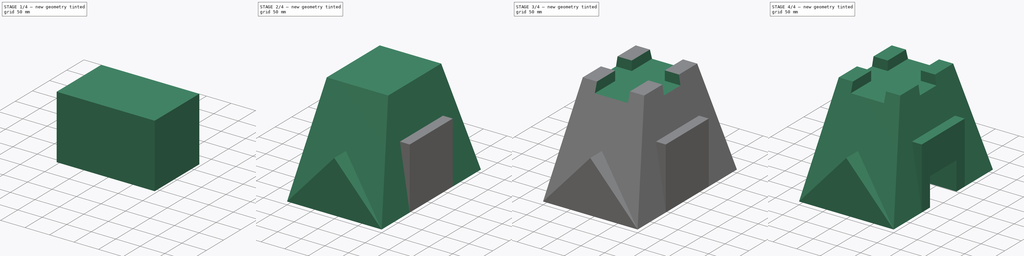
[diagram: build sequence overview — one tinted view per stage of 4, left to right]
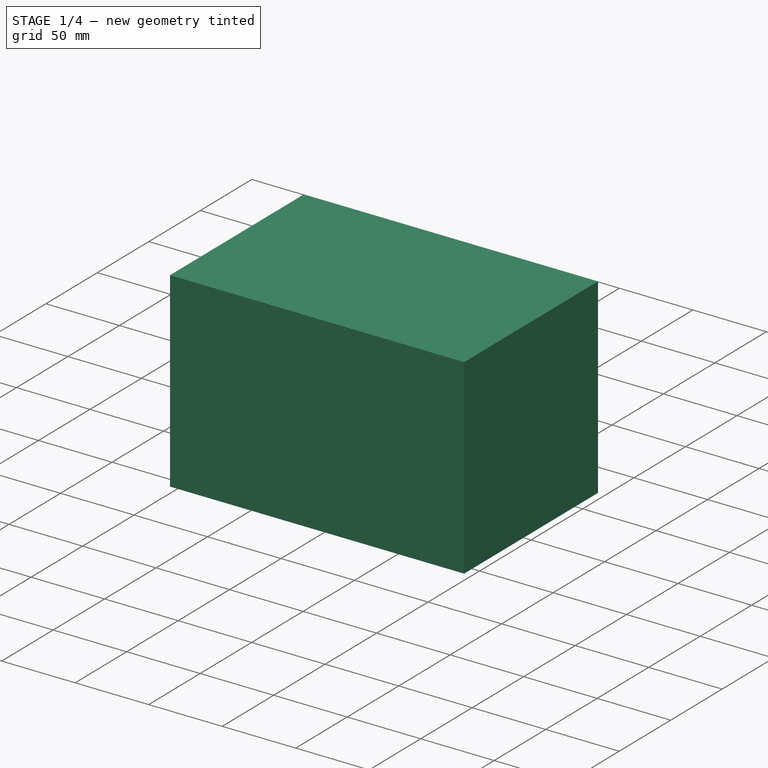
[diagram: stage 1 of 4 — iso view after this stage's code; geometry added in this stage tinted green]
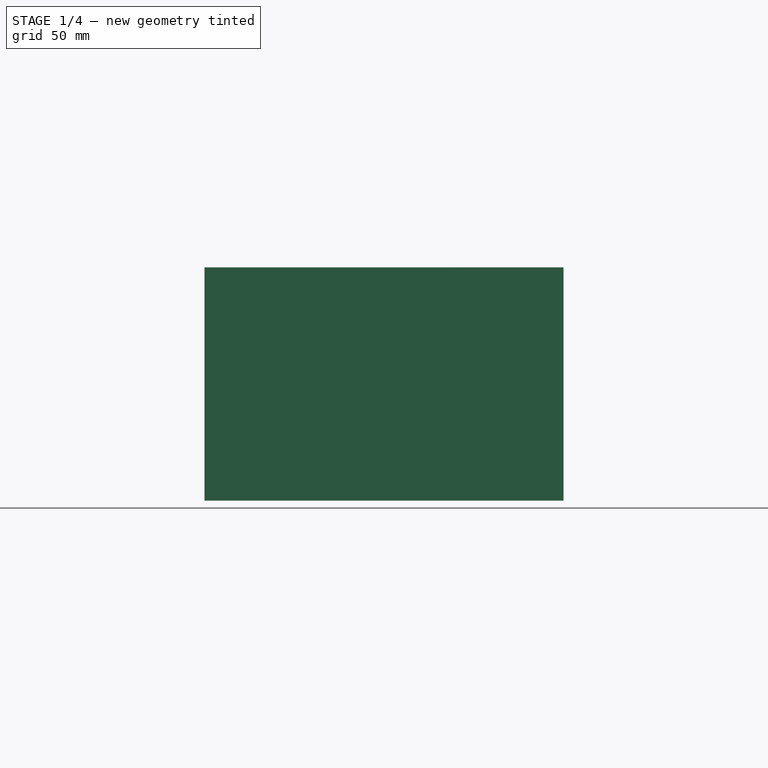
[diagram: stage 1 of 4 — front view after this stage's code; geometry added in this stage tinted green]
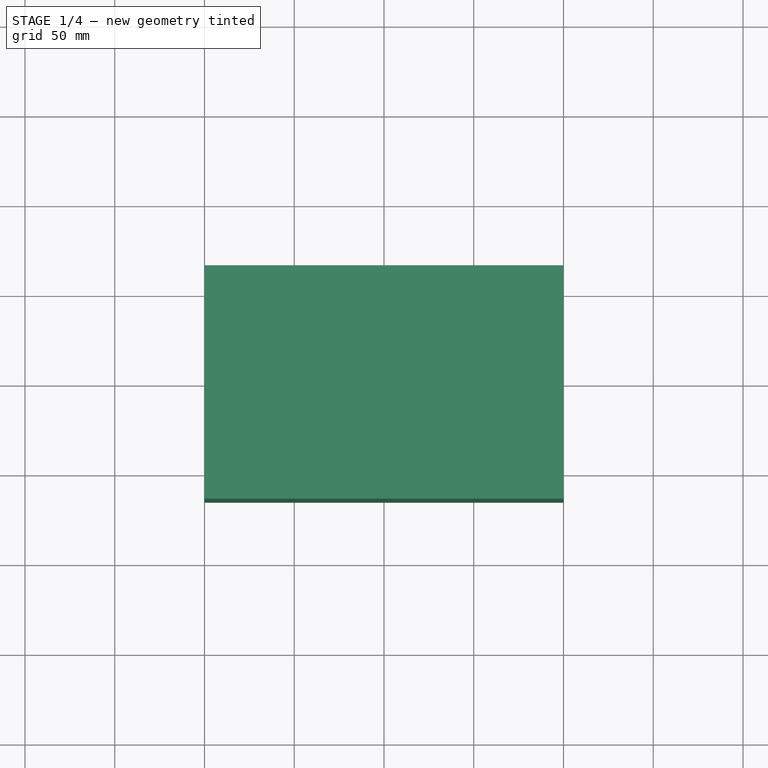
[diagram: stage 1 of 4 — top view after this stage's code; geometry added in this stage tinted green]
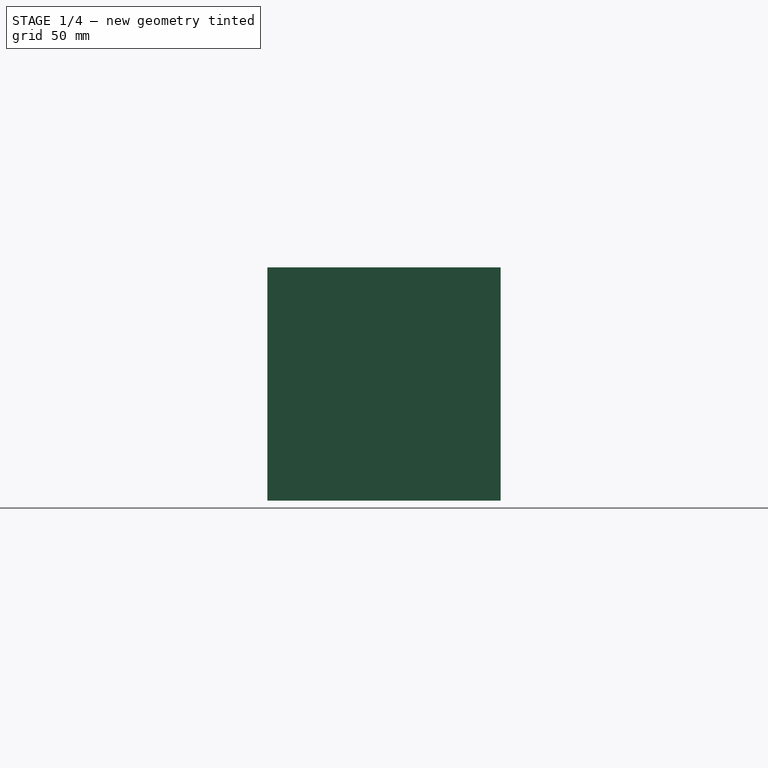
[diagram: stage 1 of 4 — right view after this stage's code; geometry added in this stage tinted green]
FCSTD DOCUMENT  (FreeCAD 0.16R)
Label: Ejer Final 22
License: All rights reserved
LicenseURL: http://en.wikipedia.org/wiki/All_rights_reserved
objects: Sketcher::SketchObject×9, PartDesign::Pad×4, PartDesign::Pocket×3, Part::MultiFuse×2, Part::Loft×1, Part::Cut×1
note: 27 computed .brp shape members not serialized (recipe doc carries the construction recipe); baked Part::Feature solids carry a one-line shape summary decoded from their .brp

FEATURE [PartDesign::Pad] Pad002
  Length = 200
  Length2 = 100
  Midplane = true
  Placement = pos=(0,0,0) rot=(0.57735,0.57735,0.57735;2.0944rad)
  Sketch = -> Sketch006
  Type = 0
FEATURE [Sketcher::SketchObject] Sketch007
  Placement = pos=(0,0,0) rot=(0.57735,0.57735,0.57735;2.0944rad)
  sketch-geometry (4):
    g0: LineSegment StartX=65 StartY=0 StartZ=0 EndX=65 EndY=130 EndZ=0
    g1: LineSegment StartX=65 StartY=130 StartZ=0 EndX=-65 EndY=130 EndZ=0
    g2: LineSegment StartX=-65 StartY=130 StartZ=0 EndX=-65 EndY=0 EndZ=0
    g3: LineSegment StartX=-65 StartY=0 StartZ=0 EndX=65 EndY=0 EndZ=0
  constraints (12):
    c: Coincident(g0,g1)
    c: Coincident(g1,g2)
    c: Horizontal(g1)
    c: Vertical(g0)
    c: Vertical(g2)
    c: DistanceX(g2,g0) = 130
    c: DistanceY(g2,g1) = 130
    c: Symmetric(g0,g1,g-2)
    c: Coincident(g3,g2)
    c: Coincident(g3,g0)
    c: Horizontal(g3)
    c: Symmetric(g3,g3,g-1)
FEATURE [PartDesign::Pad] Pad003
  Length = 200
  Length2 = 100
  Midplane = true
  Placement = pos=(0,0,0) rot=(0.57735,0.57735,0.57735;2.0944rad)
  Sketch = -> Sketch007
  Type = 0
FEATURE [Sketcher::SketchObject] Sketch008
  Placement = pos=(100,0,0) rot=(0.57735,0.57735,0.57735;2.0944rad)
  Support = -> Pad003 [Face6]
  sketch-geometry (4):
    g0: LineSegment StartX=-40 StartY=0 StartZ=0 EndX=40 EndY=0 EndZ=0
    g1: LineSegment StartX=40 StartY=0 StartZ=0 EndX=40 EndY=60 EndZ=0
    g2: LineSegment StartX=40 StartY=60 StartZ=0 EndX=-40 EndY=60 EndZ=0
    g3: LineSegment StartX=-40 StartY=60 StartZ=0 EndX=-40 EndY=0 EndZ=0
  constraints (12):
    c: Coincident(g0,g1)
    c: Coincident(g1,g2)
    c: Coincident(g2,g3)
    c: Coincident(g3,g0)
    c: Horizontal(g0)
    c: Horizontal(g2)
    c: Vertical(g1)
    c: Vertical(g3)
    c: DistanceX(g2,g2) = 80
    c: DistanceY(g3,g3) = 60
    c: Symmetric(g0,g0,g-2)
    c: PointOnObject(g-1,g0)
FEATURE [PartDesign::Pocket] Pocket002
  Length = 5
  Placement = pos=(0,0,0) rot=(0.57735,0.57735,0.57735;2.0944rad)
  Sketch = -> Sketch008
  Type = 1
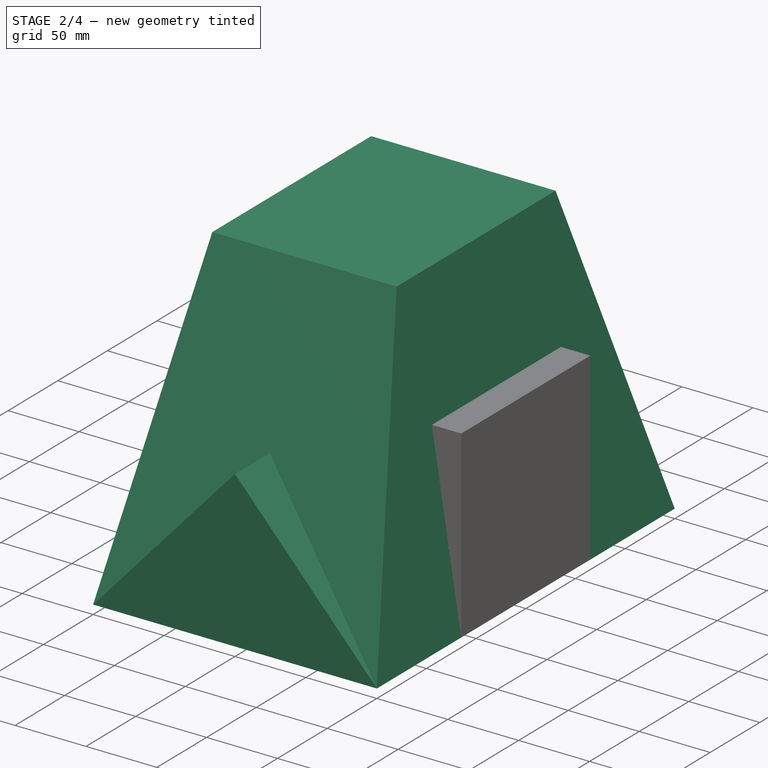
[diagram: stage 2 of 4 — iso view after this stage's code; geometry added in this stage tinted green]
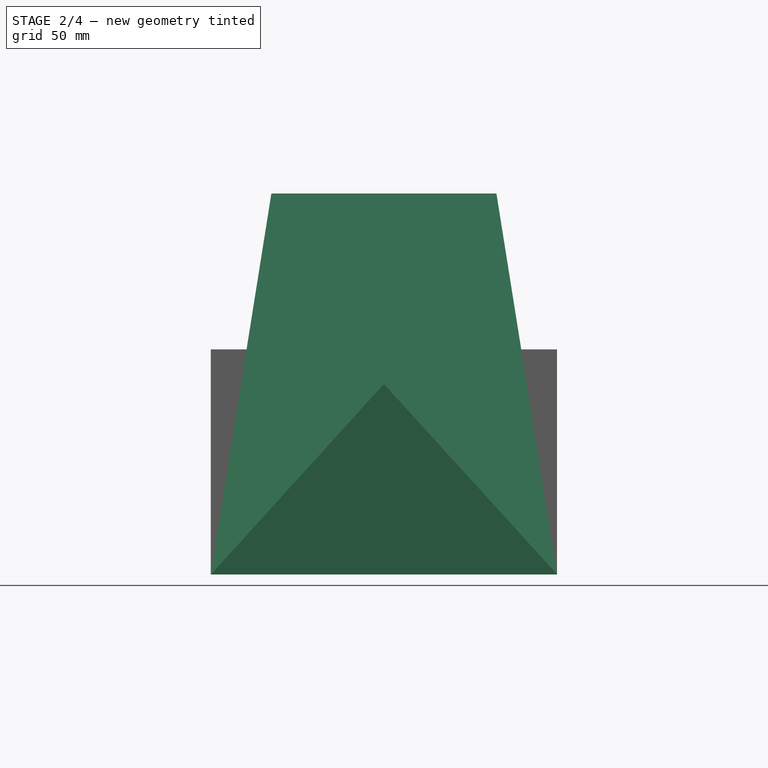
[diagram: stage 2 of 4 — front view after this stage's code; geometry added in this stage tinted green]
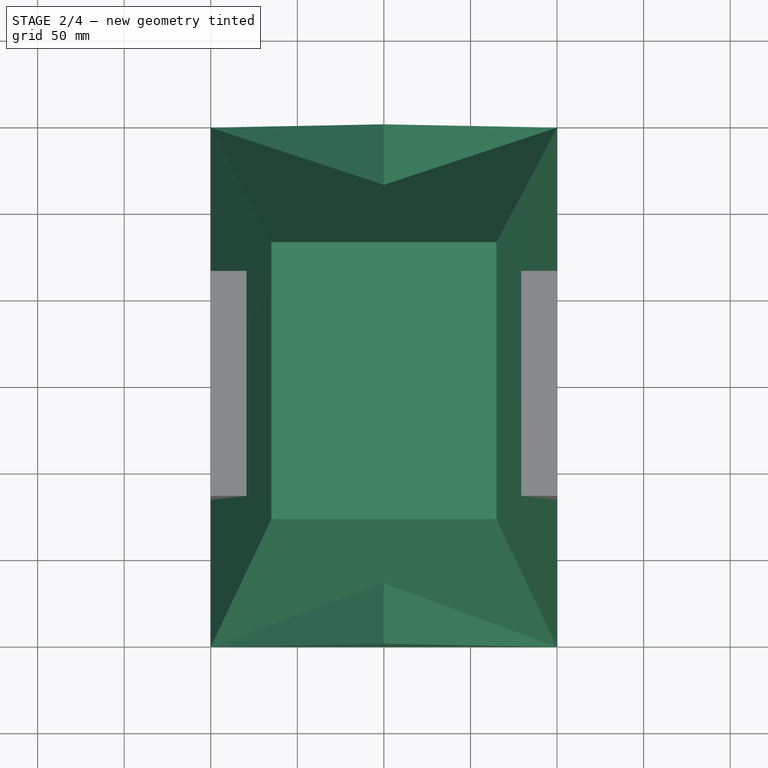
[diagram: stage 2 of 4 — top view after this stage's code; geometry added in this stage tinted green]
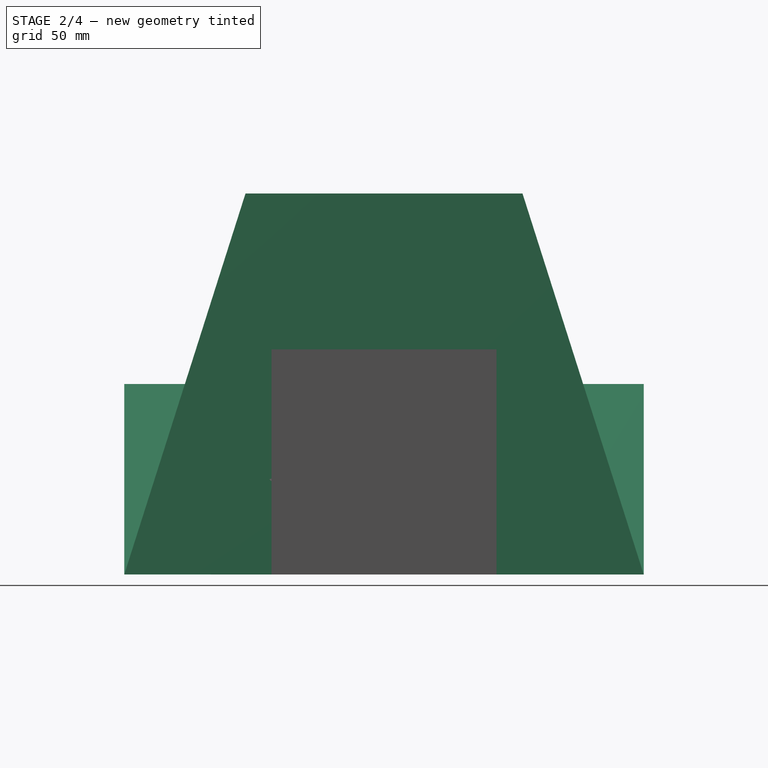
[diagram: stage 2 of 4 — right view after this stage's code; geometry added in this stage tinted green]
FEATURE [Sketcher::SketchObject] Sketch
  sketch-geometry (4):
    g0: LineSegment StartX=-100 StartY=150 StartZ=0 EndX=100 EndY=150 EndZ=0
    g1: LineSegment StartX=100 StartY=150 StartZ=0 EndX=100 EndY=-150 EndZ=0
    g2: LineSegment StartX=100 StartY=-150 StartZ=0 EndX=-100 EndY=-150 EndZ=0
    g3: LineSegment StartX=-100 StartY=-150 StartZ=0 EndX=-100 EndY=150 EndZ=0
  constraints (12):
    c: Coincident(g0,g1)
    c: Coincident(g1,g2)
    c: Coincident(g2,g3)
    c: Coincident(g3,g0)
    c: Horizontal(g0)
    c: Horizontal(g2)
    c: Vertical(g1)
    c: Vertical(g3)
    c: DistanceY(g3,g3) = 300
    c: DistanceX(g0,g0) = 200
    c: Symmetric(g0,g0,g-2)
    c: Symmetric(g2,g0,g-1)
FEATURE [Sketcher::SketchObject] Sketch001
  Placement = pos=(0,0,220) rot=(0,0,1;0rad)
  sketch-geometry (4):
    g0: LineSegment StartX=-65 StartY=80 StartZ=0 EndX=65 EndY=80 EndZ=0
    g1: LineSegment StartX=65 StartY=80 StartZ=0 EndX=65 EndY=-80 EndZ=0
    g2: LineSegment StartX=65 StartY=-80 StartZ=0 EndX=-65 EndY=-80 EndZ=0
    g3: LineSegment StartX=-65 StartY=-80 StartZ=0 EndX=-65 EndY=80 EndZ=0
  constraints (12):
    c: Coincident(g0,g1)
    c: Coincident(g1,g2)
    c: Coincident(g2,g3)
    c: Coincident(g3,g0)
    c: Horizontal(g0)
    c: Horizontal(g2)
    c: Vertical(g1)
    c: Vertical(g3)
    c: DistanceY(g3,g3) = 160
    c: DistanceX(g0,g0) = 130
    c: Symmetric(g0,g1,g-1)
    c: Symmetric(g2,g1,g-2)
FEATURE [Part::Loft] Loft
  Closed = false
  Ruled = false
  Sections = -> [Sketch,Sketch001]
  Solid = true
FEATURE [Sketcher::SketchObject] Sketch004
  Placement = pos=(0,-150,0) rot=(-1,0,0;4.71239rad)
  sketch-geometry (3):
    g0: LineSegment StartX=-99.8851 StartY=0 StartZ=0 EndX=100.115 EndY=0 EndZ=0
    g1: LineSegment StartX=100.115 StartY=0 StartZ=0 EndX=0 EndY=110 EndZ=0
    g2: LineSegment StartX=0 StartY=110 StartZ=0 EndX=-99.8851 EndY=0 EndZ=0
  constraints (8):
    c: Horizontal(g0)
    c: Coincident(g0,g1)
    c: PointOnObject(g1,g-2)
    c: Coincident(g1,g2)
    c: Coincident(g2,g0)
    c: DistanceX(g0,g0) = 200
    c: DistanceY(g-1,g1) = 110
    c: PointOnObject(g-1,g0)
FEATURE [PartDesign::Pad] Pad
  Length = 50
  Length2 = 100
  Placement = pos=(0,-150,0) rot=(-1,0,0;4.71239rad)
  Reversed = true
  Sketch = -> Sketch004
  Type = 0
FEATURE [Sketcher::SketchObject] Sketch005
  Placement = pos=(0,150,0) rot=(-1,0,0;4.71239rad)
  sketch-geometry (3):
    g0: LineSegment StartX=-100 StartY=0 StartZ=0 EndX=100 EndY=0 EndZ=0
    g1: LineSegment StartX=100 StartY=0 StartZ=0 EndX=0 EndY=110 EndZ=0
    g2: LineSegment StartX=0 StartY=110 StartZ=0 EndX=-100 EndY=0 EndZ=0
  constraints (9):
    c: Horizontal(g0)
    c: Coincident(g0,g1)
    c: PointOnObject(g1,g-2)
    c: Coincident(g2,g0)
    c: Coincident(g1,g2)
    c: DistanceX(g0,g0) = 200
    c: Symmetric(g0,g0,g-2)
    c: DistanceY(g-1,g1) = 110
    c: PointOnObject(g-1,g0)
FEATURE [PartDesign::Pad] Pad001
  Length = 50
  Length2 = 100
  Placement = pos=(0,150,0) rot=(-1,0,0;4.71239rad)
  Sketch = -> Sketch005
  Type = 0
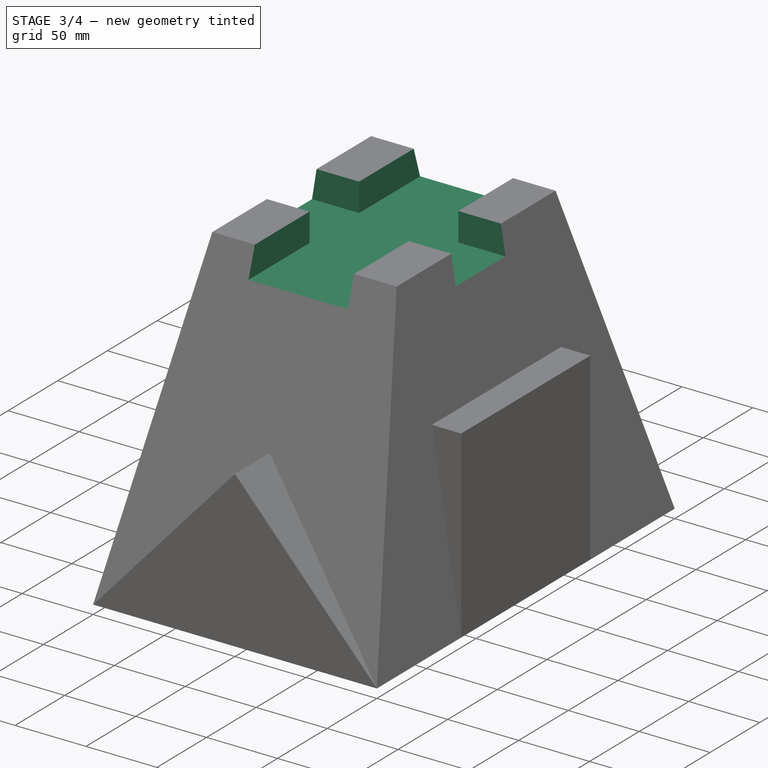
[diagram: stage 3 of 4 — iso view after this stage's code; geometry added in this stage tinted green]
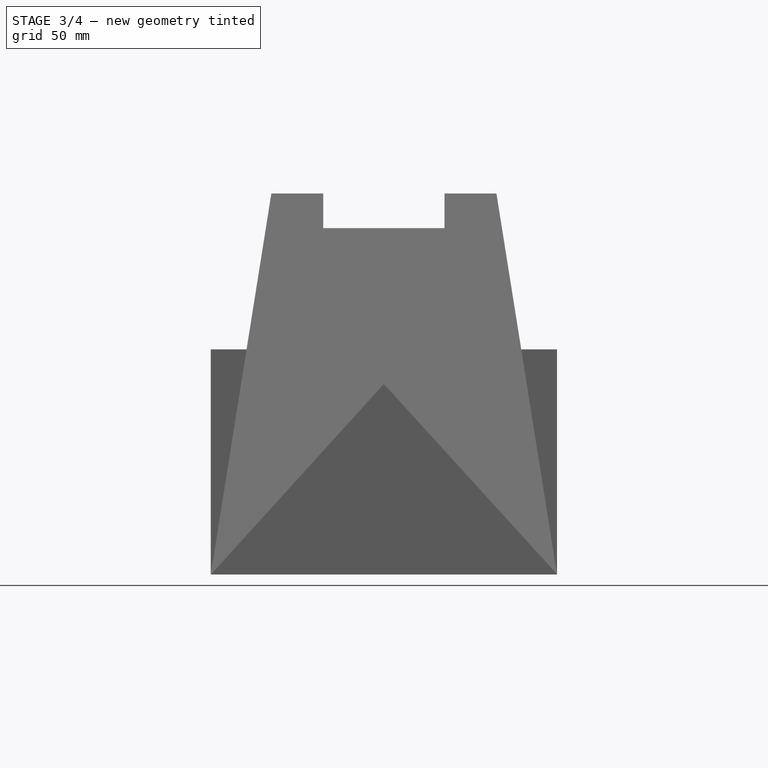
[diagram: stage 3 of 4 — front view after this stage's code; geometry added in this stage tinted green]
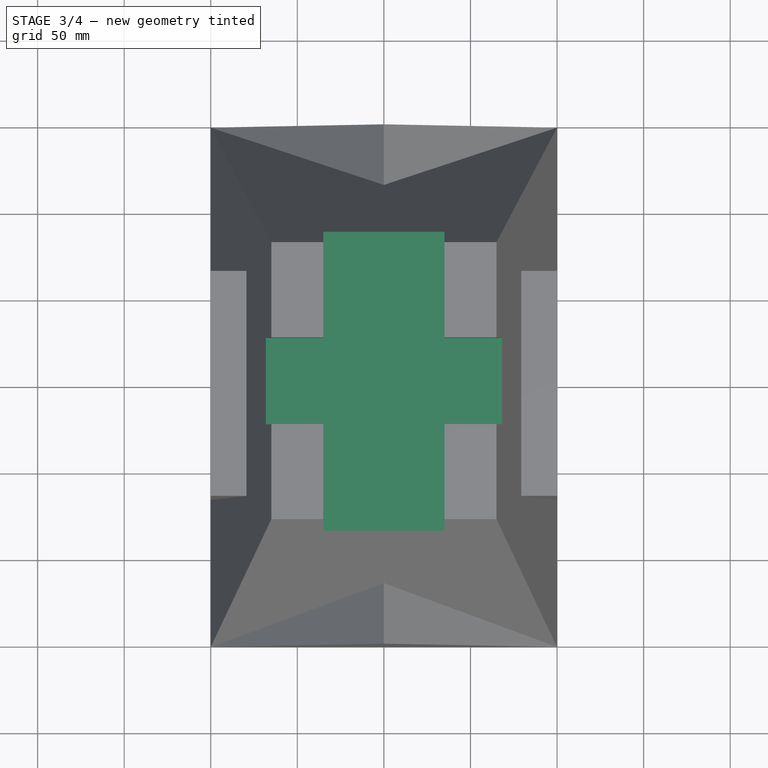
[diagram: stage 3 of 4 — top view after this stage's code; geometry added in this stage tinted green]
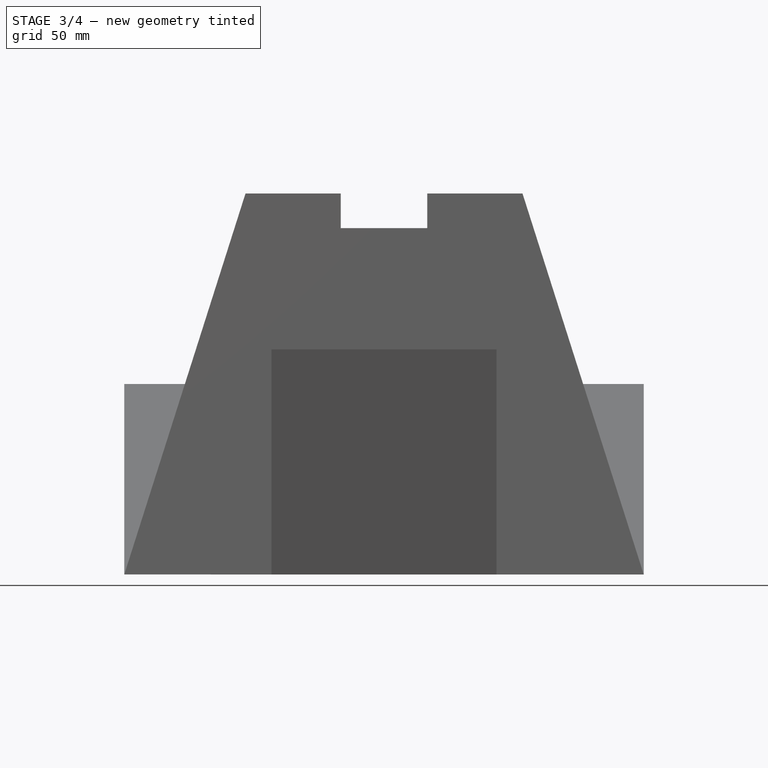
[diagram: stage 3 of 4 — right view after this stage's code; geometry added in this stage tinted green]
FEATURE [Sketcher::SketchObject] Sketch002
  Placement = pos=(0,0,220) rot=(0,0,1;0rad)
  Support = -> Loft [Face6]
  sketch-geometry (4):
    g0: LineSegment StartX=-35 StartY=127.254 StartZ=0 EndX=35 EndY=127.254 EndZ=0
    g1: LineSegment StartX=35 StartY=127.254 StartZ=0 EndX=35 EndY=-116.424 EndZ=0
    g2: LineSegment StartX=35 StartY=-116.424 StartZ=0 EndX=-35 EndY=-116.424 EndZ=0
    g3: LineSegment StartX=-35 StartY=-116.424 StartZ=0 EndX=-35 EndY=127.254 EndZ=0
  constraints (10):
    c: Coincident(g0,g1)
    c: Coincident(g1,g2)
    c: Coincident(g2,g3)
    c: Coincident(g3,g0)
    c: Horizontal(g0)
    c: Horizontal(g2)
    c: Vertical(g1)
    c: Vertical(g3)
    c: Symmetric(g1,g2,g-2)
    c: DistanceX(g2,g2) = 70
FEATURE [PartDesign::Pocket] Pocket
  Length = 20
  Sketch = -> Sketch002
  Type = 0
FEATURE [Sketcher::SketchObject] Sketch003
  Placement = pos=(0,0,220) rot=(0,0,1;0rad)
  Support = -> Pocket [Face3]
  sketch-geometry (4):
    g0: LineSegment StartX=-111.46 StartY=25 StartZ=0 EndX=127.705 EndY=25 EndZ=0
    g1: LineSegment StartX=127.705 StartY=25 StartZ=0 EndX=127.705 EndY=-25 EndZ=0
    g2: LineSegment StartX=127.705 StartY=-25 StartZ=0 EndX=-111.46 EndY=-25 EndZ=0
    g3: LineSegment StartX=-111.46 StartY=-25 StartZ=0 EndX=-111.46 EndY=25 EndZ=0
  constraints (10):
    c: Coincident(g0,g1)
    c: Coincident(g1,g2)
    c: Coincident(g2,g3)
    c: Coincident(g3,g0)
    c: Horizontal(g0)
    c: Horizontal(g2)
    c: Vertical(g1)
    c: Vertical(g3)
    c: Symmetric(g1,g0,g-1)
    c: DistanceY(g3,g3) = 50
FEATURE [PartDesign::Pocket] Pocket001
  Length = 20
  Sketch = -> Sketch003
  Type = 0
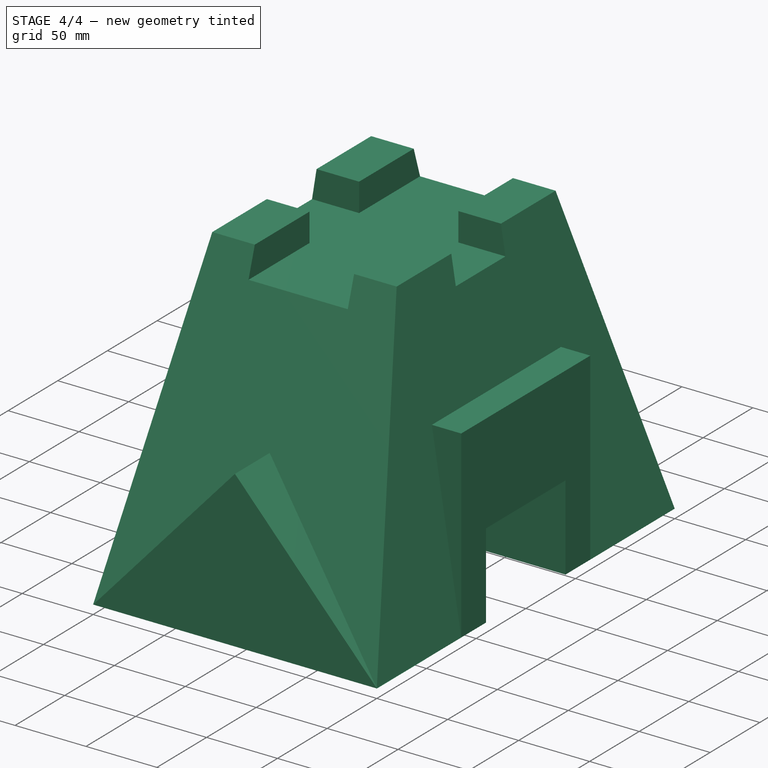
[diagram: stage 4 of 4 — iso view after this stage's code; geometry added in this stage tinted green]
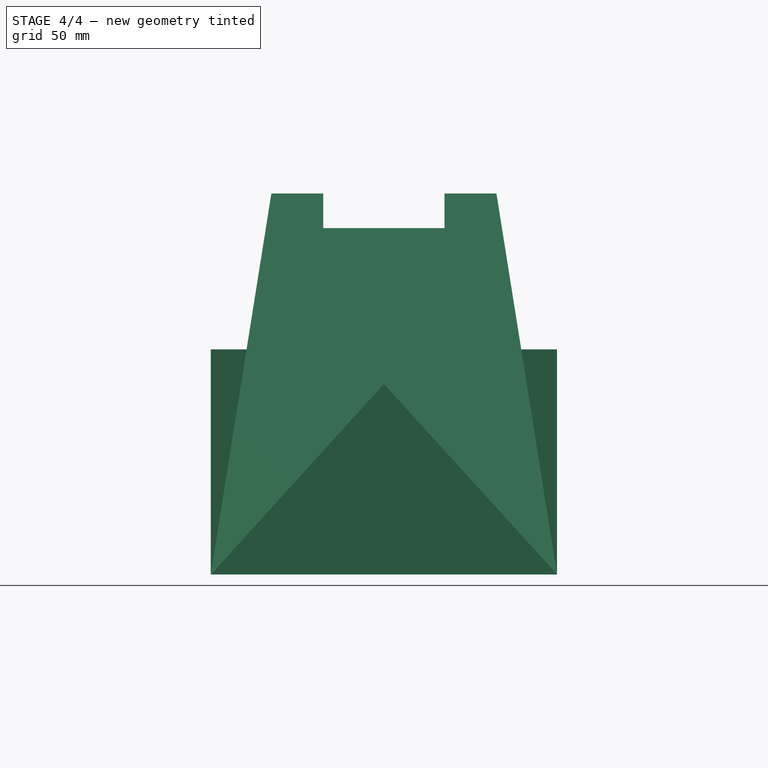
[diagram: stage 4 of 4 — front view after this stage's code; geometry added in this stage tinted green]
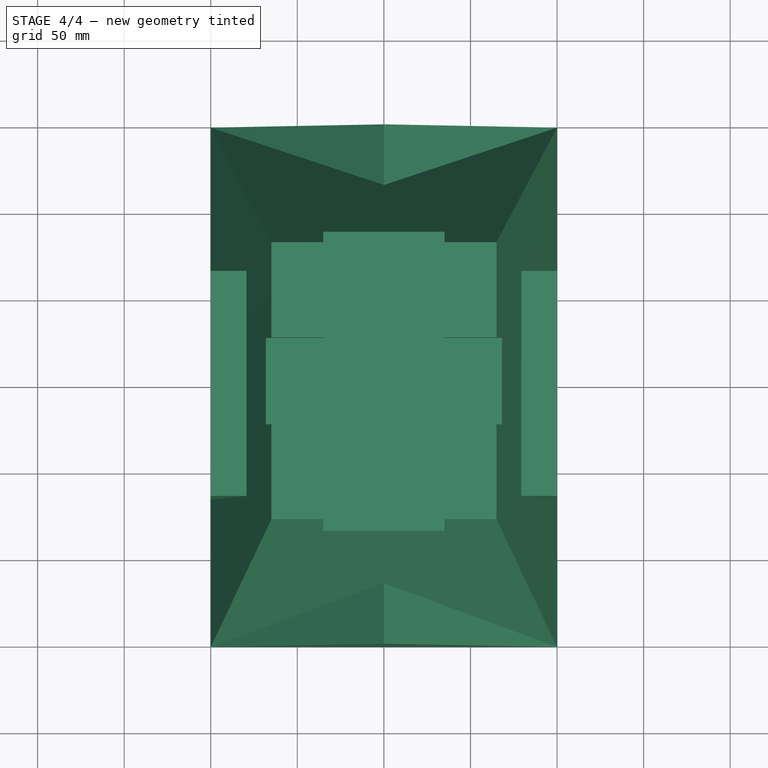
[diagram: stage 4 of 4 — top view after this stage's code; geometry added in this stage tinted green]
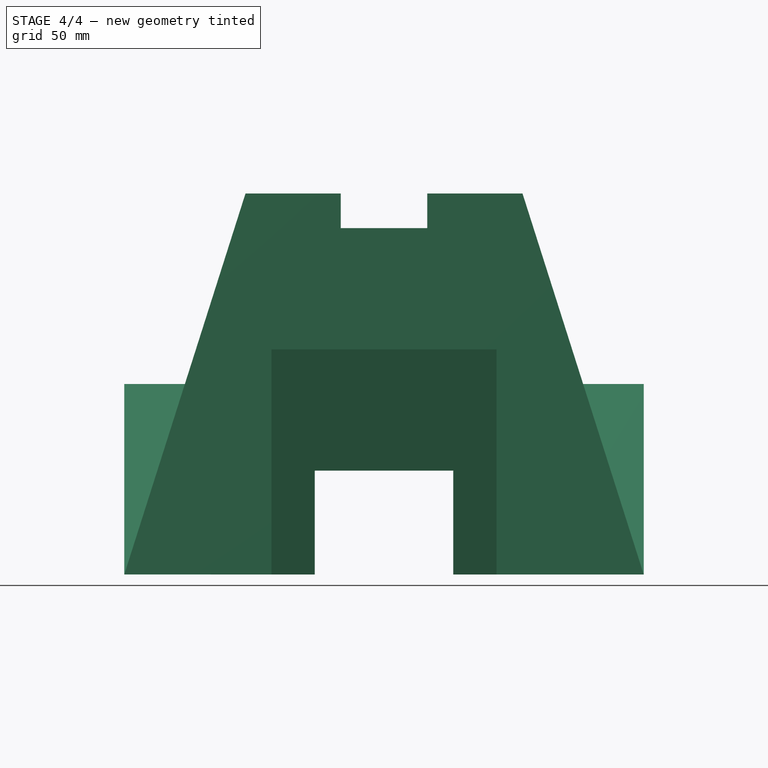
[diagram: stage 4 of 4 — right view after this stage's code; geometry added in this stage tinted green]
FEATURE [Part::MultiFuse] Fusion
  Shapes = -> [Pocket001,Pad]
FEATURE [Sketcher::SketchObject] Sketch006
  Placement = pos=(0,0,0) rot=(0.57735,0.57735,0.57735;2.0944rad)
  sketch-geometry (4):
    g0: LineSegment StartX=65 StartY=0 StartZ=0 EndX=65 EndY=130 EndZ=0
    g1: LineSegment StartX=65 StartY=130 StartZ=0 EndX=-65 EndY=130 EndZ=0
    g2: LineSegment StartX=-65 StartY=130 StartZ=0 EndX=-65 EndY=0 EndZ=0
    g3: LineSegment StartX=-65 StartY=0 StartZ=0 EndX=65 EndY=0 EndZ=0
  constraints (12):
    c: Coincident(g0,g1)
    c: Coincident(g1,g2)
    c: Horizontal(g1)
    c: Vertical(g0)
    c: Vertical(g2)
    c: DistanceX(g2,g0) = 130
    c: DistanceY(g2,g1) = 130
    c: Symmetric(g0,g1,g-2)
    c: Coincident(g3,g2)
    c: Coincident(g3,g0)
    c: Horizontal(g3)
    c: Symmetric(g3,g3,g-1)
FEATURE [Part::MultiFuse] Fusion001
  Shapes = -> [Fusion,Pad001]
FEATURE [Part::Cut] Cut
  Base = -> Fusion001
  Tool = -> Pad002
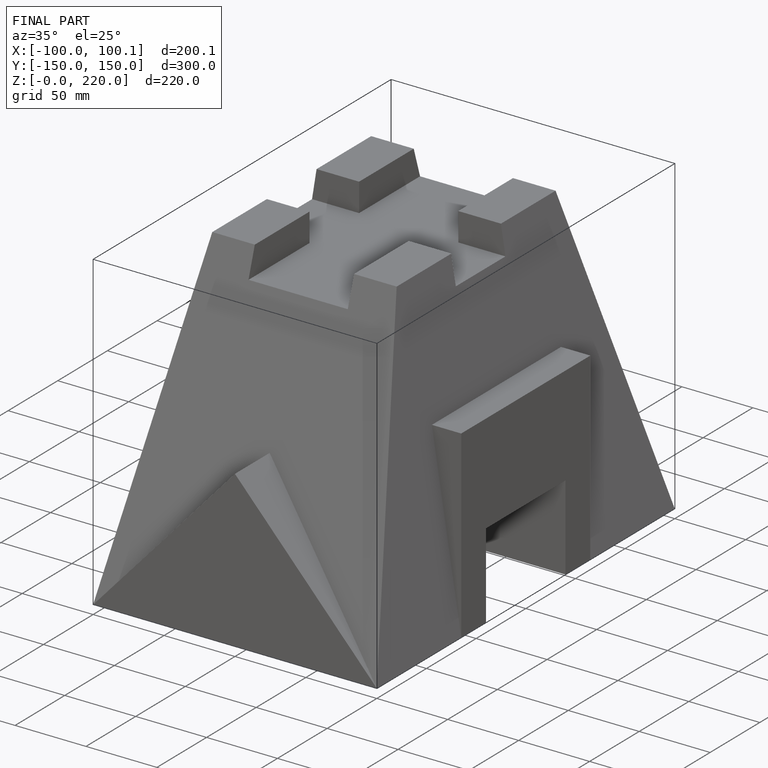
[diagram: finished part — iso view with bounding-box wireframe]
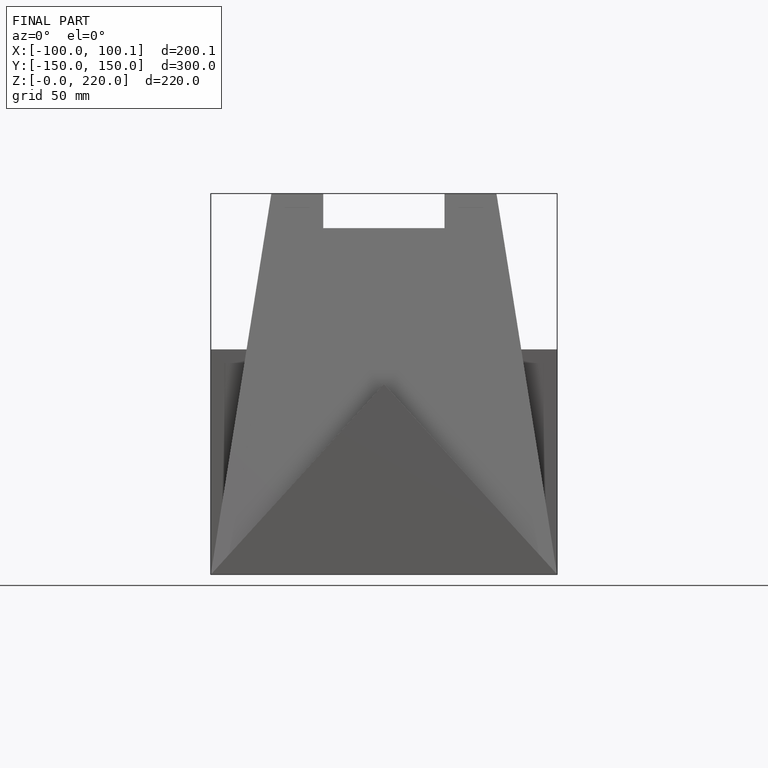
[diagram: finished part — front view with bounding-box wireframe]
